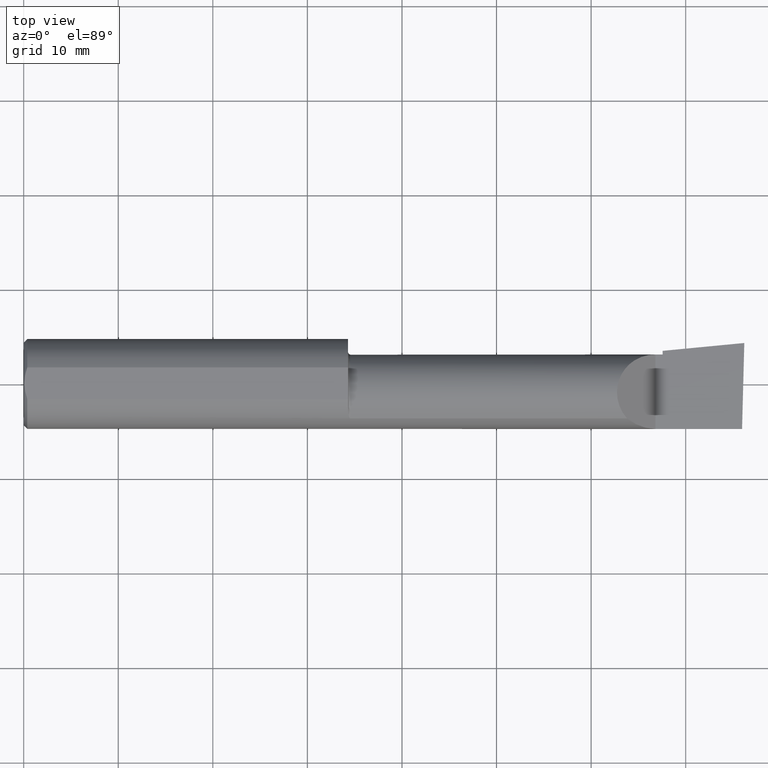
[diagram: clean part render]
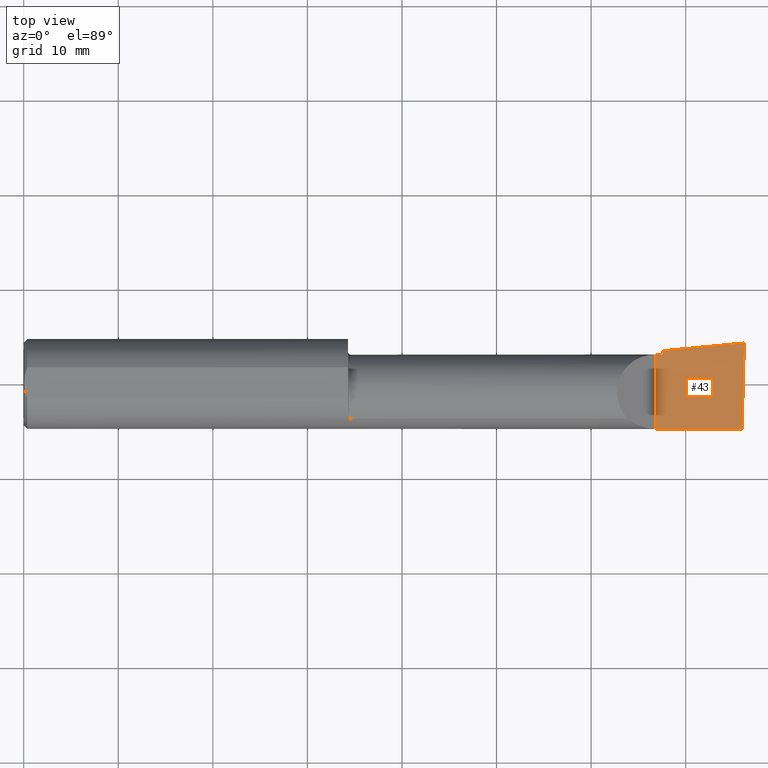
[diagram: same view with one face highlighted and labeled with its STEP entity id]
A machine part, top view. The second image highlights one B-rep face of the part: STEP entity #43.
In plain terms, the highlighted planar face has unit normal (-0, 0, -1).
Its self-contained STEP definition (entity closure, byte-faithful):
#12 = DIRECTION ( 'NONE',  ( -0.000000000000000000, 1.000000000000000000, -0.000000000000000000 ) ) ;
#43 = ADVANCED_FACE ( 'NONE', ( #515 ), #365, .F. ) ;
#46 = DIRECTION ( 'NONE',  ( -1.000000000000000000, -0.000000000000000000, -0.000000000000000000 ) ) ;
#63 = ORIENTED_EDGE ( 'NONE', *, *, #276, .T. ) ;
#66 = EDGE_CURVE ( 'NONE', #166, #254, #413, .T. ) ;
#67 = VECTOR ( 'NONE', #483, 39.37007874015748143 ) ;
#79 = CARTESIAN_POINT ( 'NONE',  ( 2.990625440078235275, -0.1873499999999999888, -6.696573958807117964E-17 ) ) ;
#82 = AXIS2_PLACEMENT_3D ( 'NONE', #523, #526, #285 ) ;
#90 = DIRECTION ( 'NONE',  ( 1.000000000000000000, -5.691349986800549142E-18, 0.000000000000000000 ) ) ;
#92 = CARTESIAN_POINT ( 'NONE',  ( 9.109005653874781230E-19, 0.1226499999999999535, 3.563723795045361633E-16 ) ) ;
#108 = CARTESIAN_POINT ( 'NONE',  ( 2.629999999999999893, -0.1873499999999999888, -1.592040838891560883E-17 ) ) ;
#123 = LINE ( 'NONE', #283, #625 ) ;
#153 = CARTESIAN_POINT ( 'NONE',  ( 2.629999999999999893, 0.1226499999999998147, -1.592040838891560883E-17 ) ) ;
#155 = CARTESIAN_POINT ( 'NONE',  ( 2.988992440003207296, -0.2497117568972559432, -6.673801155297139976E-17 ) ) ;
#166 = VERTEX_POINT ( 'NONE', #153 ) ;
#169 = ORIENTED_EDGE ( 'NONE', *, *, #243, .F. ) ;
#198 = VECTOR ( 'NONE', #46, 39.37007874015748143 ) ;
#203 = VERTEX_POINT ( 'NONE', #108 ) ;
#214 = EDGE_LOOP ( 'NONE', ( #377, #63, #359, #169, #421, #348 ) ) ;
#242 = CARTESIAN_POINT ( 'NONE',  ( 2.659999999999999698, 0.1226500000000000368, 3.563723795045364098E-16 ) ) ;
#243 = EDGE_CURVE ( 'NONE', #254, #574, #532, .T. ) ;
#244 = LINE ( 'NONE', #289, #198 ) ;
#254 = VERTEX_POINT ( 'NONE', #242 ) ;
#276 = EDGE_CURVE ( 'NONE', #335, #395, #297, .T. ) ;
#283 = CARTESIAN_POINT ( 'NONE',  ( 0.8393181374772692438, -0.03739999999999999575, 2.375616991505620205E-16 ) ) ;
#285 = DIRECTION ( 'NONE',  ( -1.000000000000000000, 0.000000000000000000, 1.415561931153809475E-16 ) ) ;
#289 = CARTESIAN_POINT ( 'NONE',  ( 5.044671737413194975E-32, -0.1873499999999999610, 3.563723795045361633E-16 ) ) ;
#297 = LINE ( 'NONE', #155, #390 ) ;
#314 = LINE ( 'NONE', #397, #406 ) ;
#319 = VECTOR ( 'NONE', #90, 39.37007874015748143 ) ;
#335 = VERTEX_POINT ( 'NONE', #79 ) ;
#340 = CARTESIAN_POINT ( 'NONE',  ( 2.659999999999999698, -0.2500000000000000555, -2.016709418237695393E-17 ) ) ;
#343 = DIRECTION ( 'NONE',  ( 0.02617694830786920085, 0.9996573249755573709, -3.650474420803249347E-18 ) ) ;
#348 = ORIENTED_EDGE ( 'NONE', *, *, #354, .F. ) ;
#353 = CARTESIAN_POINT ( 'NONE',  ( 3.000000000000015099, 0.1706500000000298611, 9.270328747797009695E-14 ) ) ;
#354 = EDGE_CURVE ( 'NONE', #203, #166, #314, .T. ) ;
#359 = ORIENTED_EDGE ( 'NONE', *, *, #399, .F. ) ;
#365 = PLANE ( 'NONE',  #82 ) ;
#377 = ORIENTED_EDGE ( 'NONE', *, *, #557, .F. ) ;
#390 = VECTOR ( 'NONE', #343, 39.37007874015748854 ) ;
#395 = VERTEX_POINT ( 'NONE', #353 ) ;
#397 = CARTESIAN_POINT ( 'NONE',  ( 2.629999999999999893, -0.2500000000000000555, -1.592040838891560883E-17 ) ) ;
#399 = EDGE_CURVE ( 'NONE', #574, #395, #123, .T. ) ;
#406 = VECTOR ( 'NONE', #12, 39.37007874015748143 ) ;
#413 = LINE ( 'NONE', #92, #319 ) ;
#421 = ORIENTED_EDGE ( 'NONE', *, *, #66, .F. ) ;
#483 = DIRECTION ( 'NONE',  ( 5.691349986800549142E-18, 1.000000000000000000, -8.056458378187594471E-34 ) ) ;
#515 = FACE_OUTER_BOUND ( 'NONE', #214, .T. ) ;
#519 = DIRECTION ( 'NONE',  ( 0.9953961983671787417, 0.09584575252022456415, -1.409044964823803883E-16 ) ) ;
#523 = CARTESIAN_POINT ( 'NONE',  ( 3.000000000000000444, -0.2500000000000000555, -6.829619984160658046E-17 ) ) ;
#526 = DIRECTION ( 'NONE',  ( -1.415561931153809475E-16, 0.000000000000000000, -1.000000000000000000 ) ) ;
#532 = LINE ( 'NONE', #340, #67 ) ;
#557 = EDGE_CURVE ( 'NONE', #335, #203, #244, .T. ) ;
#574 = VERTEX_POINT ( 'NONE', #578 ) ;
#578 = CARTESIAN_POINT ( 'NONE',  ( 2.659999999999999698, 0.1379117236128416524, 3.521522804332839197E-16 ) ) ;
#625 = VECTOR ( 'NONE', #519, 39.37007874015748143 ) ;